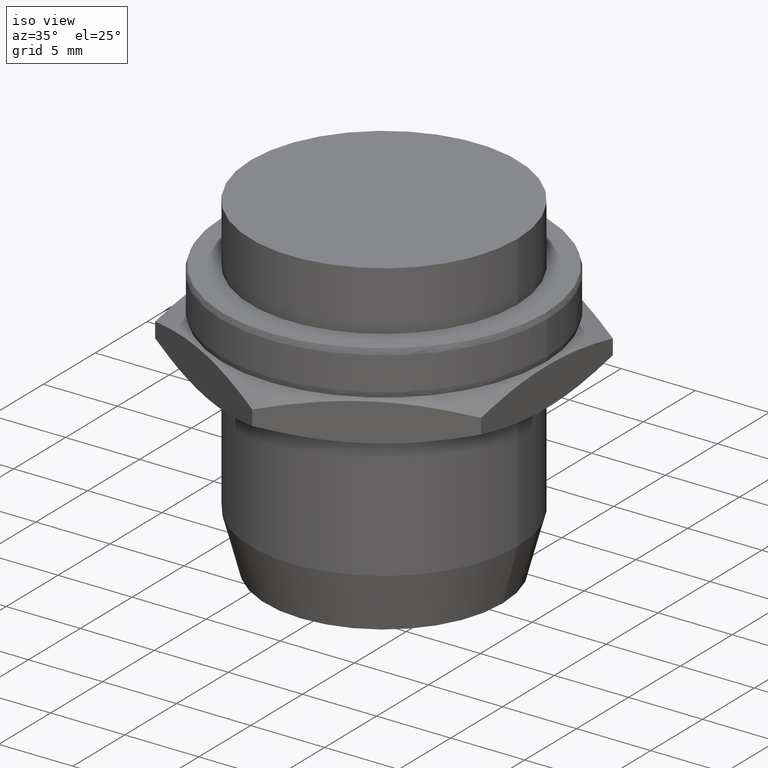
[diagram: clean part render]
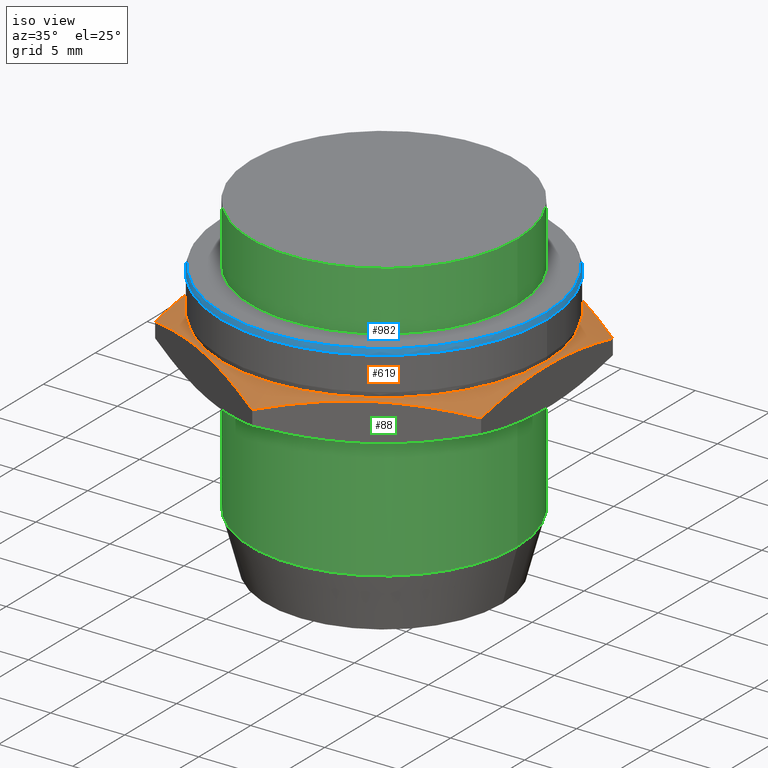
[diagram: same view with three faces highlighted in distinct colors, each labeled with its STEP entity id]
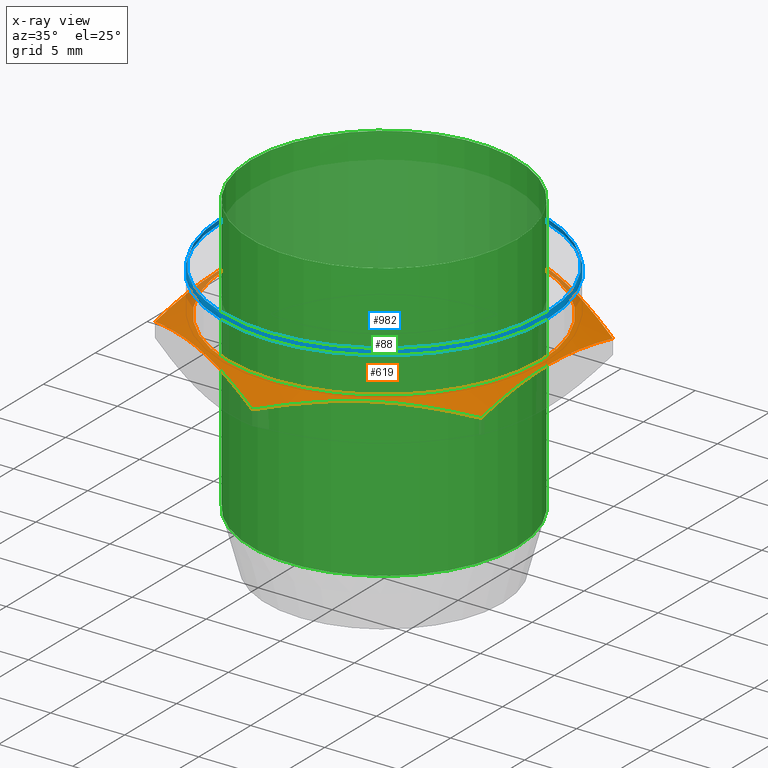
[diagram: x-ray of the same camera — body ghosted, the three highlighted faces saturated]
A machine part, iso view with three faces highlighted in distinct colors.
The next image is the same camera in x-ray (body ghosted, the three faces saturated) — at least one of them is partly hidden behind the body in this view.
Their STEP definitions:

[orange] entity #619 — the highlighted face is a freeform B-spline surface patch.
#243=CARTESIAN_POINT('',(11.0,-6.350852961085820,14.546885796379968));
#244=VERTEX_POINT('',#243);
#245=CARTESIAN_POINT('',(0.0,-12.701705922171186,14.546885796380224));
#246=VERTEX_POINT('',#245);
#247=CARTESIAN_POINT('',(11.000000000000007,-6.350852961085820,14.546885796379968));
#248=CARTESIAN_POINT('',(9.778146408371441,-7.056290461122785,14.863044658640280));
#249=CARTESIAN_POINT('',(8.186844221901687,-7.975029206843033,15.172062306934700));
#250=CARTESIAN_POINT('',(6.120498376946614,-9.168034536666710,15.312646778401970));
#251=CARTESIAN_POINT('',(4.821082770299476,-9.918252486953520,15.315152666362431));
#252=CARTESIAN_POINT('',(2.732028802609953,-11.124368357550793,15.158738086754298));
#253=CARTESIAN_POINT('',(1.120266995919785,-12.054919470512687,14.836758774030233));
#254=CARTESIAN_POINT('',(0.0,-12.701705922171186,14.546885796380224));
#255=B_SPLINE_CURVE_WITH_KNOTS('',3,(#247,#248,#249,#250,#251,#252,#253,#254),.UNSPECIFIED.,.F.,.U.,(4,1,1,1,1,4),(0.0,4.341052780925415,5.571715310727742,7.168127117034588,8.839998499548461,12.819524565981359),.UNSPECIFIED.);
#256=EDGE_CURVE('',#244,#246,#255,.T.);
#293=CARTESIAN_POINT('',(11.0,6.350852961086730,14.546885796379765));
#294=VERTEX_POINT('',#293);
#295=CARTESIAN_POINT('',(11.000000000000007,6.350852961086730,14.546885796379765));
#296=CARTESIAN_POINT('',(11.000000000000007,4.939977961012573,14.863044658640094));
#297=CARTESIAN_POINT('',(11.000000000000121,3.102500469572078,15.172062306934517));
#298=CARTESIAN_POINT('',(10.999999999999893,0.716489809924497,15.312646778401866));
#299=CARTESIAN_POINT('',(11.000000000000149,-0.783946090649692,15.315152666362268));
#300=CARTESIAN_POINT('',(10.999999999999837,-3.196177831843784,15.158738086754230));
#301=CARTESIAN_POINT('',(11.000000000000007,-5.057280057768480,14.836758774030045));
#302=CARTESIAN_POINT('',(11.000000000000007,-6.350852961085820,14.546885796379968));
#303=B_SPLINE_CURVE_WITH_KNOTS('',3,(#295,#296,#297,#298,#299,#300,#301,#302),.UNSPECIFIED.,.F.,.U.,(4,1,1,1,1,4),(0.0,4.341052780925521,5.571715310727896,7.168127117034939,8.839998499548811,12.819524565982421),.UNSPECIFIED.);
#304=EDGE_CURVE('',#294,#244,#303,.T.);
#334=CARTESIAN_POINT('',(0.0,12.701705922172096,14.546885796379815));
#335=VERTEX_POINT('',#334);
#336=CARTESIAN_POINT('',(0.0,12.701705922172096,14.546885796379815));
#337=CARTESIAN_POINT('',(1.221853591628630,11.996268422135017,14.863044658640103));
#338=CARTESIAN_POINT('',(2.813155778098491,11.077529676414997,15.172062306934393));
#339=CARTESIAN_POINT('',(4.879501623053770,9.884524346591320,15.312646778401643));
#340=CARTESIAN_POINT('',(6.178917229700851,9.134306396304169,15.315152666362039));
#341=CARTESIAN_POINT('',(8.267971197390182,7.928190525706782,15.158738086753861));
#342=CARTESIAN_POINT('',(9.879733004080336,6.997639412745116,14.836758774029750));
#343=CARTESIAN_POINT('',(11.000000000000007,6.350852961086730,14.546885796379765));
#344=B_SPLINE_CURVE_WITH_KNOTS('',3,(#336,#337,#338,#339,#340,#341,#342,#343),.UNSPECIFIED.,.F.,.U.,(4,1,1,1,1,4),(0.0,4.341052780925620,5.571715310727987,7.168127117035002,8.839998499548861,12.819524565981341),.UNSPECIFIED.);
#345=EDGE_CURVE('',#335,#294,#344,.T.);
#375=CARTESIAN_POINT('',(-11.0,6.350852961086730,14.546885796379765));
#376=VERTEX_POINT('',#375);
#377=CARTESIAN_POINT('',(-11.000000000000014,6.350852961086730,14.546885796379765));
#378=CARTESIAN_POINT('',(-9.778146408371384,7.056290461123808,14.863044658640058));
#379=CARTESIAN_POINT('',(-8.186844221901424,7.975029206843828,15.172062306934389));
#380=CARTESIAN_POINT('',(-6.120498376946365,9.168034536667733,15.312646778401678));
#381=CARTESIAN_POINT('',(-4.821082770299221,9.918252486954657,15.315152666361998));
#382=CARTESIAN_POINT('',(-2.732028802609761,11.124368357551816,15.158738086753846));
#383=CARTESIAN_POINT('',(-1.120266995919685,12.054919470513710,14.836758774029800));
#384=CARTESIAN_POINT('',(0.0,12.701705922172096,14.546885796379815));
#385=B_SPLINE_CURVE_WITH_KNOTS('',3,(#377,#378,#379,#380,#381,#382,#383,#384),.UNSPECIFIED.,.F.,.U.,(4,1,1,1,1,4),(0.0,4.341052780925628,5.571715310727997,7.168127117034930,8.839998499548830,12.819524565981357),.UNSPECIFIED.);
#386=EDGE_CURVE('',#376,#335,#385,.T.);
#416=CARTESIAN_POINT('',(-11.0,-6.350852961085820,14.546885796379968));
#417=VERTEX_POINT('',#416);
#418=CARTESIAN_POINT('',(-11.000000000000014,-6.350852961085820,14.546885796379968));
#419=CARTESIAN_POINT('',(-11.000000000000014,-4.939977961011664,14.863044658640280));
#420=CARTESIAN_POINT('',(-10.999999999999858,-3.102500469571055,15.172062306934649));
#421=CARTESIAN_POINT('',(-11.000000000000114,-0.716489809923019,15.312646778401859));
#422=CARTESIAN_POINT('',(-10.999999999999929,0.783946090650829,15.315152666362311));
#423=CARTESIAN_POINT('',(-11.000000000000114,3.196177831845148,15.158738086753953));
#424=CARTESIAN_POINT('',(-11.000000000000014,5.057280057769617,14.836758774029839));
#425=CARTESIAN_POINT('',(-11.000000000000014,6.350852961086730,14.546885796379765));
#426=B_SPLINE_CURVE_WITH_KNOTS('',3,(#418,#419,#420,#421,#422,#423,#424,#425),.UNSPECIFIED.,.F.,.U.,(4,1,1,1,1,4),(0.0,4.341052780925728,5.571715310728100,7.168127117035144,8.839998499549253,12.819524565982421),.UNSPECIFIED.);
#427=EDGE_CURVE('',#417,#376,#426,.T.);
#457=CARTESIAN_POINT('',(0.0,-12.701705922171186,14.546885796380224));
#458=CARTESIAN_POINT('',(-1.120266995919778,-12.054919470512687,14.836758774030230));
#459=CARTESIAN_POINT('',(-2.732028802610088,-11.124368357550679,15.158738086754241));
#460=CARTESIAN_POINT('',(-4.821082770299427,-9.918252486953634,15.315152666362433));
#461=CARTESIAN_POINT('',(-6.120498376946614,-9.168034536666596,15.312646778401970));
#462=CARTESIAN_POINT('',(-8.186844221901680,-7.975029206843374,15.172062306934684));
#463=CARTESIAN_POINT('',(-9.778146408371441,-7.056290461122785,14.863044658640280));
#464=CARTESIAN_POINT('',(-11.000000000000014,-6.350852961085820,14.546885796379968));
#465=B_SPLINE_CURVE_WITH_KNOTS('',3,(#457,#458,#459,#460,#461,#462,#463,#464),.UNSPECIFIED.,.F.,.U.,(4,1,1,1,1,4),(0.0,3.979526066432867,5.651397448946763,7.247809255253616,8.478471785055939,12.819524565981363),.UNSPECIFIED.);
#466=EDGE_CURVE('',#246,#417,#465,.T.);
#489=CARTESIAN_POINT('',(0.0,10.575045621572713,15.499999999999993));
#490=VERTEX_POINT('',#489);
#491=CARTESIAN_POINT('',(0.0,-10.575045621572713,15.499999999999993));
#492=VERTEX_POINT('',#491);
#493=CARTESIAN_POINT('',(0.0,0.0,15.499999999999993));
#494=DIRECTION('',(0.0,-2.099704E-017,-1.0));
#495=DIRECTION('',(0.0,-1.0,2.099704E-017));
#496=AXIS2_PLACEMENT_3D('',#493,#494,#495);
#497=CIRCLE('',#496,10.575045621572713);
#498=EDGE_CURVE('',#490,#492,#497,.T.);
#500=CARTESIAN_POINT('',(0.0,0.0,15.499999999999993));
#501=DIRECTION('',(0.0,-2.099704E-017,-1.0));
#502=DIRECTION('',(0.0,-1.0,2.099704E-017));
#503=AXIS2_PLACEMENT_3D('',#500,#501,#502);
#504=CIRCLE('',#503,10.575045621572713);
#505=EDGE_CURVE('',#492,#490,#504,.T.);
#576=CARTESIAN_POINT('',(0.0,-10.575045621549537,15.500000000010390));
#577=CARTESIAN_POINT('',(10.575045621549537,-10.575045621549537,15.500000000010388));
#578=CARTESIAN_POINT('',(10.575045621549537,0.0,15.500000000010390));
#579=CARTESIAN_POINT('',(10.575045621549537,10.575045621549537,15.500000000010388));
#580=CARTESIAN_POINT('',(0.0,10.575045621549537,15.500000000010390));
#581=CARTESIAN_POINT('',(-10.575045621549537,10.575045621549537,15.500000000010388));
#582=CARTESIAN_POINT('',(-10.575045621549537,0.0,15.500000000010390));
#583=CARTESIAN_POINT('',(-10.575045621549537,-10.575045621549537,15.500000000010388));
#584=CARTESIAN_POINT('',(0.0,-10.575045621549537,15.500000000010390));
#585=CARTESIAN_POINT('',(0.0,-12.701713106592605,14.546882576508157));
#586=CARTESIAN_POINT('',(12.701713106592605,-12.701713106592605,14.546882576508155));
#587=CARTESIAN_POINT('',(12.701713106592605,0.0,14.546882576508157));
#588=CARTESIAN_POINT('',(12.701713106592605,12.701713106592605,14.546882576508155));
#589=CARTESIAN_POINT('',(0.0,12.701713106592605,14.546882576508157));
#590=CARTESIAN_POINT('',(-12.701713106592605,12.701713106592605,14.546882576508155));
#591=CARTESIAN_POINT('',(-12.701713106592605,0.0,14.546882576508157));
#592=CARTESIAN_POINT('',(-12.701713106592605,-12.701713106592605,14.546882576508155));
#593=CARTESIAN_POINT('',(0.0,-12.701713106592605,14.546882576508157));
#601=(BOUNDED_SURFACE()B_SPLINE_SURFACE(2,1,((#576,#585),(#577,#586),(#578,#587),(#579,#588),(#580,#589),(#581,#590),(#582,#591),(#583,#592),(#584,#593)),.UNSPECIFIED.,.T.,.F.,.U.)B_SPLINE_SURFACE_WITH_KNOTS((3,2,2,2,3),(2,2),(0.0,0.250000000000000,0.500000000000000,0.750000000000000,1.0),(-3.880029637489480,-1.549547409511129),.UNSPECIFIED.)GEOMETRIC_REPRESENTATION_ITEM()RATIONAL_B_SPLINE_SURFACE(((1.0,1.0),(0.707106781186548,0.707106781186548),(1.0,1.0),(0.707106781186548,0.707106781186548),(1.0,1.0),(0.707106781186548,0.707106781186548),(1.0,1.0),(0.707106781186548,0.707106781186548),(1.0,1.0)))REPRESENTATION_ITEM('')SURFACE());
#602=ORIENTED_EDGE('',*,*,#256,.F.);
#603=ORIENTED_EDGE('',*,*,#304,.F.);
#604=ORIENTED_EDGE('',*,*,#345,.F.);
#605=ORIENTED_EDGE('',*,*,#386,.F.);
#606=ORIENTED_EDGE('',*,*,#427,.F.);
#607=ORIENTED_EDGE('',*,*,#466,.F.);
#608=CARTESIAN_POINT('',(0.0,-10.575045621572734,15.499999999999993));
#609=DIRECTION('',(0.0,-0.912543961722425,-0.408978627710473));
#610=VECTOR('',#609,2.330474354993688);
#611=LINE('',#608,#610);
#612=EDGE_CURVE('',#492,#246,#611,.T.);
#613=ORIENTED_EDGE('',*,*,#612,.F.);
#614=ORIENTED_EDGE('',*,*,#505,.T.);
#615=ORIENTED_EDGE('',*,*,#498,.T.);
#616=ORIENTED_EDGE('',*,*,#612,.T.);
#617=EDGE_LOOP('',(#602,#603,#604,#605,#606,#607,#613,#614,#615,#616));
#618=FACE_OUTER_BOUND('',#617,.T.);
#619=ADVANCED_FACE('',(#618),#601,.F.);

[blue] entity #982 — the highlighted face is a freeform B-spline surface patch.
#736=CARTESIAN_POINT('',(11.000000000000455,0.0,18.126794913681906));
#737=VERTEX_POINT('',#736);
#763=CARTESIAN_POINT('',(-11.000000000000455,0.0,18.126794913681906));
#764=VERTEX_POINT('',#763);
#765=CARTESIAN_POINT('',(0.0,0.0,18.126794913681906));
#766=DIRECTION('',(0.0,0.0,1.0));
#767=DIRECTION('',(1.0,0.0,0.0));
#768=AXIS2_PLACEMENT_3D('',#765,#766,#767);
#769=CIRCLE('',#768,11.000000000000455);
#770=EDGE_CURVE('',#764,#737,#769,.T.);
#772=CARTESIAN_POINT('',(0.0,0.0,18.126794913681906));
#773=DIRECTION('',(0.0,0.0,1.0));
#774=DIRECTION('',(1.0,0.0,0.0));
#775=AXIS2_PLACEMENT_3D('',#772,#773,#774);
#776=CIRCLE('',#775,11.000000000000455);
#777=EDGE_CURVE('',#737,#764,#776,.T.);
#787=CARTESIAN_POINT('',(10.899999998510339,0.0,18.499999999999993));
#788=VERTEX_POINT('',#787);
#789=CARTESIAN_POINT('',(-10.899999998510339,0.0,18.499999999999993));
#790=VERTEX_POINT('',#789);
#791=CARTESIAN_POINT('',(0.0,0.0,18.499999999999993));
#792=DIRECTION('',(0.0,0.0,1.0));
#793=DIRECTION('',(1.0,0.0,0.0));
#794=AXIS2_PLACEMENT_3D('',#791,#792,#793);
#795=CIRCLE('',#794,10.899999998510339);
#796=EDGE_CURVE('',#788,#790,#795,.T.);
#798=CARTESIAN_POINT('',(0.0,0.0,18.499999999999993));
#799=DIRECTION('',(0.0,0.0,1.0));
#800=DIRECTION('',(1.0,0.0,0.0));
#801=AXIS2_PLACEMENT_3D('',#798,#799,#800);
#802=CIRCLE('',#801,10.899999998510339);
#803=EDGE_CURVE('',#790,#788,#802,.T.);
#828=CARTESIAN_POINT('',(11.000000000000455,0.0,18.126794913681906));
#829=CARTESIAN_POINT('',(10.966666666170417,0.0,18.251196609121269));
#830=CARTESIAN_POINT('',(10.933333332340377,0.0,18.375598304560629));
#831=CARTESIAN_POINT('',(10.899999998510339,0.0,18.499999999999993));
#832=CARTESIAN_POINT('',(11.000000000000455,0.718792362416807,18.126794913681906));
#833=CARTESIAN_POINT('',(10.966666666170417,0.716614203710360,18.251196609121269));
#834=CARTESIAN_POINT('',(10.933333332340377,0.714436045003913,18.375598304560629));
#835=CARTESIAN_POINT('',(10.899999998510339,0.712257886297465,18.499999999999993));
#836=CARTESIAN_POINT('',(10.858183736377544,2.160360740825317,18.126794913681902));
#837=CARTESIAN_POINT('',(10.825280148807312,2.153814193028296,18.251196609121266));
#838=CARTESIAN_POINT('',(10.792376561237081,2.147267645231275,18.375598304560626));
#839=CARTESIAN_POINT('',(10.759472973666847,2.140721097434253,18.499999999999993));
#840=CARTESIAN_POINT('',(10.228185429293795,4.236510116551177,18.126794913681913));
#841=CARTESIAN_POINT('',(10.197190927531050,4.223672206915782,18.251196609121276));
#842=CARTESIAN_POINT('',(10.166196425768305,4.210834297280389,18.375598304560636));
#843=CARTESIAN_POINT('',(10.135201924005564,4.197996387644995,18.500000000000000));
#844=CARTESIAN_POINT('',(9.205123692194743,6.150705329066949,18.126794913681906));
#845=CARTESIAN_POINT('',(9.177229377560316,6.132066827792044,18.251196609121273));
#846=CARTESIAN_POINT('',(9.149335062925884,6.113428326517138,18.375598304560629));
#847=CARTESIAN_POINT('',(9.121440748291457,6.094789825242229,18.499999999999996));
#848=CARTESIAN_POINT('',(7.828314213897493,7.828303946476287,18.126794913681902));
#849=CARTESIAN_POINT('',(7.804592049259467,7.804581812951657,18.251196609121266));
#850=CARTESIAN_POINT('',(7.780869884621445,7.780859679427033,18.375598304560626));
#851=CARTESIAN_POINT('',(7.757147719983419,7.757137545902406,18.499999999999989));
#852=CARTESIAN_POINT('',(6.150667010529351,9.205126443341960,18.126794913681906));
#853=CARTESIAN_POINT('',(6.132028625371227,9.177232120370727,18.251196609121269));
#854=CARTESIAN_POINT('',(6.113390240213103,9.149337797399483,18.375598304560629));
#855=CARTESIAN_POINT('',(6.094751855054977,9.121443474428247,18.499999999999993));
#856=CARTESIAN_POINT('',(4.236653123280366,10.228184692126117,18.126794913681906));
#857=CARTESIAN_POINT('',(4.223814780291241,10.197190192597214,18.251196609121273));
#858=CARTESIAN_POINT('',(4.210976437302115,10.166195693068312,18.375598304560629));
#859=CARTESIAN_POINT('',(4.198138094312991,10.135201193539409,18.499999999999993));
#860=CARTESIAN_POINT('',(2.159827032446159,10.858183933901028,18.126794913681906));
#861=CARTESIAN_POINT('',(2.153282101947280,10.825280345732242,18.251196609121266));
#862=CARTESIAN_POINT('',(2.146737171448401,10.792376757563455,18.375598304560629));
#863=CARTESIAN_POINT('',(2.140192240949522,10.759473169394665,18.499999999999993));
#864=CARTESIAN_POINT('',(3.441691E-015,11.070908078885655,18.126794913681909));
#865=CARTESIAN_POINT('',(3.663736E-015,11.037359872086094,18.251196609121273));
#866=CARTESIAN_POINT('',(3.330669E-015,11.003811665286531,18.375598304560629));
#867=CARTESIAN_POINT('',(3.663736E-015,10.970263458486976,18.499999999999993));
#868=CARTESIAN_POINT('',(-2.159827032446162,10.858183750559091,18.126794913681902));
#869=CARTESIAN_POINT('',(-2.153282101947284,10.825280162945887,18.251196609121269));
#870=CARTESIAN_POINT('',(-2.146737171448405,10.792376575332680,18.375598304560629));
#871=CARTESIAN_POINT('',(-2.140192240949526,10.759472987719473,18.499999999999993));
#872=CARTESIAN_POINT('',(-4.236653123280359,10.228185425493859,18.126794913681913));
#873=CARTESIAN_POINT('',(-4.223814780291233,10.197190923742632,18.251196609121273));
#874=CARTESIAN_POINT('',(-4.210976437302110,10.166196421991401,18.375598304560633));
#875=CARTESIAN_POINT('',(-4.198138094312984,10.135201920240172,18.499999999999993));
#876=CARTESIAN_POINT('',(-6.150667010529352,9.205123693212933,18.126794913681902));
#877=CARTESIAN_POINT('',(-6.132028625371227,9.177229378575417,18.251196609121269));
#878=CARTESIAN_POINT('',(-6.113390240213100,9.149335063937903,18.375598304560626));
#879=CARTESIAN_POINT('',(-6.094751855054975,9.121440749300390,18.499999999999993));
#880=CARTESIAN_POINT('',(-7.828314213897492,7.828314213624674,18.126794913681906));
#881=CARTESIAN_POINT('',(-7.804592049259467,7.804592048987479,18.251196609121266));
#882=CARTESIAN_POINT('',(-7.780869884621446,7.780869884350279,18.375598304560629));
#883=CARTESIAN_POINT('',(-7.757147719983419,7.757147719713080,18.499999999999993));
#884=CARTESIAN_POINT('',(-9.205123692194745,6.150667010602430,18.126794913681909));
#885=CARTESIAN_POINT('',(-9.177229377560318,6.132028625444082,18.251196609121273));
#886=CARTESIAN_POINT('',(-9.149335062925887,6.113390240285739,18.375598304560633));
#887=CARTESIAN_POINT('',(-9.121440748291459,6.094751855127392,18.499999999999993));
#888=CARTESIAN_POINT('',(-10.228185429293788,4.236653123260878,18.126794913681898));
#889=CARTESIAN_POINT('',(-10.197190927531043,4.223814780271813,18.251196609121266));
#890=CARTESIAN_POINT('',(-10.166196425768300,4.210976437282746,18.375598304560626));
#891=CARTESIAN_POINT('',(-10.135201924005557,4.198138094293681,18.499999999999989));
#892=CARTESIAN_POINT('',(-10.858183736377550,2.159827032451033,18.126794913681913));
#893=CARTESIAN_POINT('',(-10.825280148807320,2.153282101952138,18.251196609121273));
#894=CARTESIAN_POINT('',(-10.792376561237084,2.146737171453245,18.375598304560633));
#895=CARTESIAN_POINT('',(-10.759472973666856,2.140192240954352,18.500000000000000));
#896=CARTESIAN_POINT('',(-11.070908131811905,1.110223E-016,18.126794913681898));
#897=CARTESIAN_POINT('',(-11.037359924851962,3.330669E-016,18.251196609121266));
#898=CARTESIAN_POINT('',(-11.003811717892020,2.220446E-016,18.375598304560626));
#899=CARTESIAN_POINT('',(-10.970263510932080,5.551115E-016,18.499999999999989));
#900=CARTESIAN_POINT('',(-10.858183736377550,-2.159827032451022,18.126794913681909));
#901=CARTESIAN_POINT('',(-10.825280148807318,-2.153282101952129,18.251196609121269));
#902=CARTESIAN_POINT('',(-10.792376561237084,-2.146737171453236,18.375598304560633));
#903=CARTESIAN_POINT('',(-10.759472973666853,-2.140192240954343,18.499999999999993));
#904=CARTESIAN_POINT('',(-10.228185429293786,-4.236653123260887,18.126794913681906));
#905=CARTESIAN_POINT('',(-10.197190927531043,-4.223814780271821,18.251196609121269));
#906=CARTESIAN_POINT('',(-10.166196425768300,-4.210976437282754,18.375598304560629));
#907=CARTESIAN_POINT('',(-10.135201924005559,-4.198138094293687,18.499999999999993));
#908=CARTESIAN_POINT('',(-9.205123692194745,-6.150667010602421,18.126794913681906));
#909=CARTESIAN_POINT('',(-9.177229377560318,-6.132028625444074,18.251196609121269));
#910=CARTESIAN_POINT('',(-9.149335062925889,-6.113390240285729,18.375598304560629));
#911=CARTESIAN_POINT('',(-9.121440748291459,-6.094751855127384,18.499999999999993));
#912=CARTESIAN_POINT('',(-7.828314213897496,-7.828314213624672,18.126794913681902));
#913=CARTESIAN_POINT('',(-7.804592049259473,-7.804592048987475,18.251196609121266));
#914=CARTESIAN_POINT('',(-7.780869884621446,-7.780869884350278,18.375598304560626));
#915=CARTESIAN_POINT('',(-7.757147719983424,-7.757147719713080,18.499999999999986));
#916=CARTESIAN_POINT('',(-6.150667010529350,-9.205123693212929,18.126794913681906));
#917=CARTESIAN_POINT('',(-6.132028625371225,-9.177229378575415,18.251196609121269));
#918=CARTESIAN_POINT('',(-6.113390240213102,-9.149335063937899,18.375598304560626));
#919=CARTESIAN_POINT('',(-6.094751855054976,-9.121440749300385,18.499999999999989));
#920=CARTESIAN_POINT('',(-4.236653123280366,-10.228185425493853,18.126794913681906));
#921=CARTESIAN_POINT('',(-4.223814780291241,-10.197190923742630,18.251196609121266));
#922=CARTESIAN_POINT('',(-4.210976437302117,-10.166196421991399,18.375598304560629));
#923=CARTESIAN_POINT('',(-4.198138094312992,-10.135201920240172,18.499999999999993));
#924=CARTESIAN_POINT('',(-2.159827032446163,-10.858183750559093,18.126794913681906));
#925=CARTESIAN_POINT('',(-2.153282101947284,-10.825280162945884,18.251196609121273));
#926=CARTESIAN_POINT('',(-2.146737171448406,-10.792376575332677,18.375598304560633));
#927=CARTESIAN_POINT('',(-2.140192240949526,-10.759472987719469,18.499999999999989));
#928=CARTESIAN_POINT('',(-1.776357E-015,-11.070908078885653,18.126794913681906));
#929=CARTESIAN_POINT('',(-2.220446E-015,-11.037359872086093,18.251196609121266));
#930=CARTESIAN_POINT('',(-1.998401E-015,-11.003811665286534,18.375598304560629));
#931=CARTESIAN_POINT('',(-2.220446E-015,-10.970263458486976,18.499999999999996));
#932=CARTESIAN_POINT('',(2.159827032446158,-10.858183933901028,18.126794913681906));
#933=CARTESIAN_POINT('',(2.153282101947280,-10.825280345732242,18.251196609121269));
#934=CARTESIAN_POINT('',(2.146737171448402,-10.792376757563453,18.375598304560629));
#935=CARTESIAN_POINT('',(2.140192240949522,-10.759473169394667,18.499999999999993));
#936=CARTESIAN_POINT('',(4.236653123280363,-10.228184692126115,18.126794913681906));
#937=CARTESIAN_POINT('',(4.223814780291237,-10.197190192597214,18.251196609121269));
#938=CARTESIAN_POINT('',(4.210976437302112,-10.166195693068310,18.375598304560633));
#939=CARTESIAN_POINT('',(4.198138094312987,-10.135201193539407,18.499999999999993));
#940=CARTESIAN_POINT('',(6.150667010529350,-9.205126443341962,18.126794913681906));
#941=CARTESIAN_POINT('',(6.132028625371227,-9.177232120370723,18.251196609121269));
#942=CARTESIAN_POINT('',(6.113390240213104,-9.149337797399484,18.375598304560629));
#943=CARTESIAN_POINT('',(6.094751855054978,-9.121443474428249,18.499999999999993));
#944=CARTESIAN_POINT('',(7.828314213897492,-7.828303946476292,18.126794913681906));
#945=CARTESIAN_POINT('',(7.804592049259467,-7.804581812951666,18.251196609121269));
#946=CARTESIAN_POINT('',(7.780869884621440,-7.780859679427039,18.375598304560629));
#947=CARTESIAN_POINT('',(7.757147719983417,-7.757137545902411,18.499999999999993));
#948=CARTESIAN_POINT('',(9.205123692194741,-6.150705329066946,18.126794913681902));
#949=CARTESIAN_POINT('',(9.177229377560312,-6.132066827792039,18.251196609121266));
#950=CARTESIAN_POINT('',(9.149335062925882,-6.113428326517132,18.375598304560626));
#951=CARTESIAN_POINT('',(9.121440748291455,-6.094789825242226,18.499999999999986));
#952=CARTESIAN_POINT('',(10.228185429293781,-4.236510116551190,18.126794913681906));
#953=CARTESIAN_POINT('',(10.197190927531040,-4.223672206915796,18.251196609121269));
#954=CARTESIAN_POINT('',(10.166196425768296,-4.210834297280402,18.375598304560626));
#955=CARTESIAN_POINT('',(10.135201924005553,-4.197996387645009,18.499999999999989));
#956=CARTESIAN_POINT('',(10.858183736377544,-2.160360740825312,18.126794913681906));
#957=CARTESIAN_POINT('',(10.825280148807314,-2.153814193028290,18.251196609121266));
#958=CARTESIAN_POINT('',(10.792376561237081,-2.147267645231270,18.375598304560629));
#959=CARTESIAN_POINT('',(10.759472973666851,-2.140721097434247,18.499999999999993));
#960=CARTESIAN_POINT('',(11.000000000000455,-0.718792362416811,18.126794913681906));
#961=CARTESIAN_POINT('',(10.966666666170417,-0.716614203710363,18.251196609121269));
#962=CARTESIAN_POINT('',(10.933333332340377,-0.714436045003916,18.375598304560629));
#963=CARTESIAN_POINT('',(10.899999998510339,-0.712257886297469,18.499999999999993));
#964=CARTESIAN_POINT('',(11.000000000000455,-2.694223E-015,18.126794913681906));
#965=CARTESIAN_POINT('',(10.966666666170417,-2.686059E-015,18.251196609121269));
#966=CARTESIAN_POINT('',(10.933333332340377,-2.677894E-015,18.375598304560629));
#967=CARTESIAN_POINT('',(10.899999998510339,-2.669730E-015,18.499999999999993));
#968=B_SPLINE_SURFACE_WITH_KNOTS('',3,3,((#828,#832,#836,#840,#844,#848,#852,#856,#860,#864,#868,#872,#876,#880,#884,#888,#892,#896,#900,#904,#908,#912,#916,#920,#924,#928,#932,#936,#940,#944,#948,#952,#956,#960,#964),(#829,#833,#837,#841,#845,#849,#853,#857,#861,#865,#869,#873,#877,#881,#885,#889,#893,#897,#901,#905,#909,#913,#917,#921,#925,#929,#933,#937,#941,#945,#949,#953,#957,#961,#965),(#830,#834,#838,#842,#846,#850,#854,#858,#862,#866,#870,#874,#878,#882,#886,#890,#894,#898,#902,#906,#910,#914,#918,#922,#926,#930,#934,#938,#942,#946,#950,#954,#958,#962,#966),(#831,#835,#839,#843,#847,#851,#855,#859,#863,#867,#871,#875,#879,#883,#887,#891,#895,#899,#903,#907,#911,#915,#919,#923,#927,#931,#935,#939,#943,#947,#951,#955,#959,#963,#967)),.UNSPECIFIED.,.F.,.T.,.U.,(4,4),(4,1,1,1,1,1,1,1,1,1,1,1,1,1,1,1,1,1,1,1,1,1,1,1,1,1,1,1,1,1,1,1,4),(0.0,0.386370336273004),(0.0,2.146575373071409,4.293150746142819,6.439726119214228,8.586301492285639,10.732876865357047,12.879452238428456,15.026027611499867,17.172602984571277,19.319178357642684,21.465753730714098,23.612329103785502,25.758904476856912,27.905479849928327,30.052055222999734,32.198630596071141,34.345205969142555,36.491781342213969,38.638356715285369,40.784932088356783,42.931507461428197,45.078082834499604,47.224658207571004,49.371233580642418,51.517808953713832,53.664384326785246,55.810959699856660,57.957535072928060,60.104110445999474,62.250685819070888,64.397261192142295,66.543836565213695,68.690411938285109),.UNSPECIFIED.);
#969=CARTESIAN_POINT('',(11.000000000000455,0.0,18.126794913681906));
#970=DIRECTION('',(-0.258819045102514,0.0,0.965925826289070));
#971=VECTOR('',#970,0.386370336273004);
#972=LINE('',#969,#971);
#973=EDGE_CURVE('',#737,#788,#972,.T.);
#974=ORIENTED_EDGE('',*,*,#973,.T.);
#975=ORIENTED_EDGE('',*,*,#803,.F.);
#976=ORIENTED_EDGE('',*,*,#796,.F.);
#977=ORIENTED_EDGE('',*,*,#973,.F.);
#978=ORIENTED_EDGE('',*,*,#777,.T.);
#979=ORIENTED_EDGE('',*,*,#770,.T.);
#980=EDGE_LOOP('',(#974,#975,#976,#977,#978,#979));
#981=FACE_OUTER_BOUND('',#980,.T.);
#982=ADVANCED_FACE('',(#981),#968,.F.);

[green] entity #88 — the highlighted cylindrical surface (bore or boss wall) has radius 9 mm, axis along (0, 0, 1).
#7=CARTESIAN_POINT('',(9.0,0.0,22.499999999999993));
#8=VERTEX_POINT('',#7);
#9=CARTESIAN_POINT('',(-9.0,0.0,22.499999999999993));
#10=VERTEX_POINT('',#9);
#11=CARTESIAN_POINT('',(0.0,0.0,22.499999999999993));
#12=DIRECTION('',(0.0,0.0,1.0));
#13=DIRECTION('',(1.0,0.0,0.0));
#14=AXIS2_PLACEMENT_3D('',#11,#12,#13);
#15=CIRCLE('',#14,9.0);
#16=EDGE_CURVE('',#8,#10,#15,.T.);
#18=CARTESIAN_POINT('',(0.0,0.0,22.499999999999993));
#19=DIRECTION('',(0.0,0.0,1.0));
#20=DIRECTION('',(1.0,0.0,0.0));
#21=AXIS2_PLACEMENT_3D('',#18,#19,#20);
#22=CIRCLE('',#21,9.0);
#23=EDGE_CURVE('',#10,#8,#22,.T.);
#54=CARTESIAN_POINT('',(0.0,0.0,22.499999999999993));
#55=DIRECTION('',(0.0,0.0,1.0));
#56=DIRECTION('',(1.0,0.0,0.0));
#57=AXIS2_PLACEMENT_3D('',#54,#55,#56);
#58=CYLINDRICAL_SURFACE('',#57,9.0);
#59=CARTESIAN_POINT('',(9.0,0.0,3.732050807568964));
#60=VERTEX_POINT('',#59);
#61=CARTESIAN_POINT('',(9.0,0.0,22.499999999999993));
#62=DIRECTION('',(0.0,0.0,-1.0));
#63=VECTOR('',#62,18.767949192431029);
#64=LINE('',#61,#63);
#65=EDGE_CURVE('',#8,#60,#64,.T.);
#66=ORIENTED_EDGE('',*,*,#65,.T.);
#67=CARTESIAN_POINT('',(-9.0,0.0,3.732050807568964));
#68=VERTEX_POINT('',#67);
#69=CARTESIAN_POINT('',(0.0,0.0,3.732050807568964));
#70=DIRECTION('',(0.0,0.0,1.0));
#71=DIRECTION('',(1.0,0.0,0.0));
#72=AXIS2_PLACEMENT_3D('',#69,#70,#71);
#73=CIRCLE('',#72,9.0);
#74=EDGE_CURVE('',#60,#68,#73,.T.);
#75=ORIENTED_EDGE('',*,*,#74,.T.);
#76=CARTESIAN_POINT('',(0.0,0.0,3.732050807568964));
#77=DIRECTION('',(0.0,0.0,1.0));
#78=DIRECTION('',(1.0,0.0,0.0));
#79=AXIS2_PLACEMENT_3D('',#76,#77,#78);
#80=CIRCLE('',#79,9.0);
#81=EDGE_CURVE('',#68,#60,#80,.T.);
#82=ORIENTED_EDGE('',*,*,#81,.T.);
#83=ORIENTED_EDGE('',*,*,#65,.F.);
#84=ORIENTED_EDGE('',*,*,#23,.F.);
#85=ORIENTED_EDGE('',*,*,#16,.F.);
#86=EDGE_LOOP('',(#66,#75,#82,#83,#84,#85));
#87=FACE_OUTER_BOUND('',#86,.T.);
#88=ADVANCED_FACE('',(#87),#58,.T.);